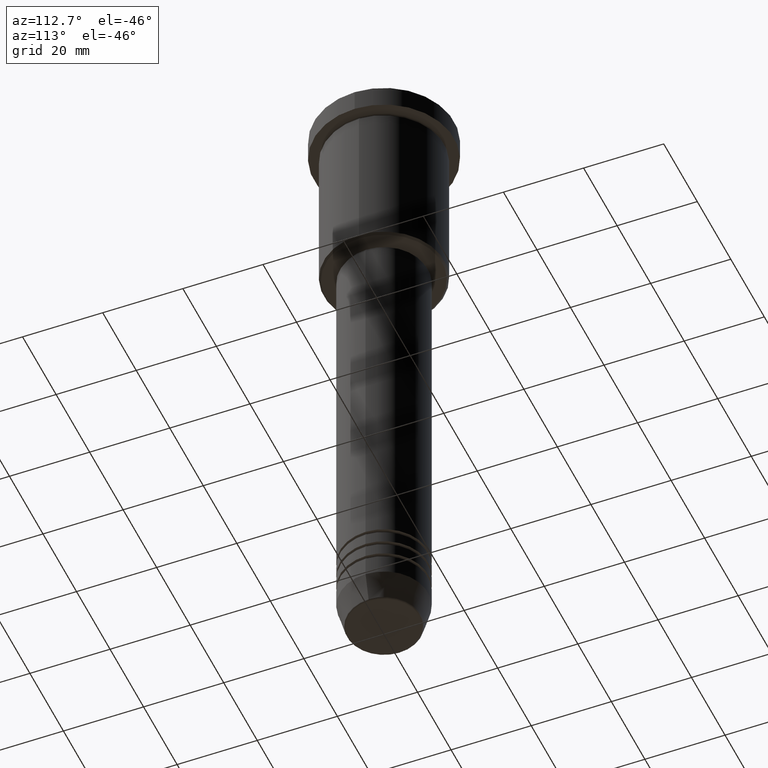
[diagram: clean part render]
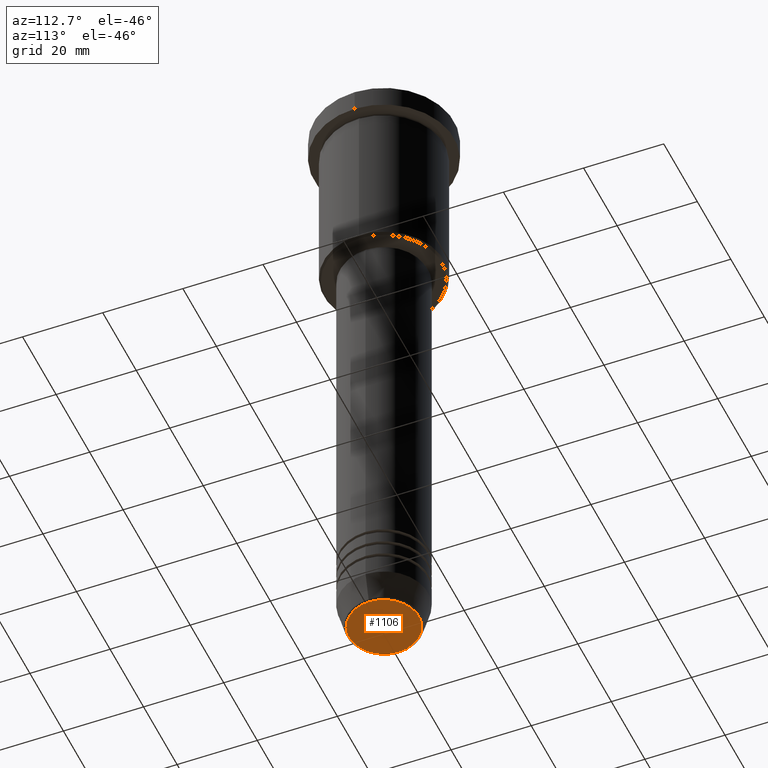
[diagram: same view with one face highlighted and labeled with its STEP entity id]
A machine part, auxiliary view. The second image highlights one B-rep face of the part: STEP entity #1106.
In plain terms, the highlighted planar face has unit normal (0, -0, 1).
Its self-contained STEP definition (entity closure, byte-faithful):
#14 = DIRECTION ( 'NONE',  ( 1.000000000000000000, 0.000000000000000000, 0.000000000000000000 ) ) ;
#18 = FACE_OUTER_BOUND ( 'NONE', #97, .T. ) ;
#97 = EDGE_LOOP ( 'NONE', ( #449, #1149 ) ) ;
#157 = CIRCLE ( 'NONE', #1078, 8.740692158992656502 ) ;
#192 = DIRECTION ( 'NONE',  ( 0.000000000000000000, -0.000000000000000000, 1.000000000000000000 ) ) ;
#215 = DIRECTION ( 'NONE',  ( 0.000000000000000000, 0.000000000000000000, -1.000000000000000000 ) ) ;
#282 = PLANE ( 'NONE',  #1003 ) ;
#299 = CARTESIAN_POINT ( 'NONE',  ( 0.000000000000000000, 0.000000000000000000, -161.0000000000000284 ) ) ;
#373 = EDGE_CURVE ( 'NONE', #775, #1055, #856, .T. ) ;
#422 = EDGE_CURVE ( 'NONE', #1055, #775, #157, .T. ) ;
#449 = ORIENTED_EDGE ( 'NONE', *, *, #373, .T. ) ;
#483 = DIRECTION ( 'NONE',  ( 1.000000000000000000, 0.000000000000000000, 0.000000000000000000 ) ) ;
#509 = CARTESIAN_POINT ( 'NONE',  ( 0.000000000000000000, 0.000000000000000000, -161.0000000000000284 ) ) ;
#700 = DIRECTION ( 'NONE',  ( 0.000000000000000000, 0.000000000000000000, -1.000000000000000000 ) ) ;
#774 = CARTESIAN_POINT ( 'NONE',  ( 8.740692158992656502, 0.000000000000000000, -161.0000000000000284 ) ) ;
#775 = VERTEX_POINT ( 'NONE', #774 ) ;
#792 = DIRECTION ( 'NONE',  ( 1.000000000000000000, 0.000000000000000000, 0.000000000000000000 ) ) ;
#856 = CIRCLE ( 'NONE', #929, 8.740692158992656502 ) ;
#929 = AXIS2_PLACEMENT_3D ( 'NONE', #299, #215, #483 ) ;
#1003 = AXIS2_PLACEMENT_3D ( 'NONE', #1010, #192, #14 ) ;
#1010 = CARTESIAN_POINT ( 'NONE',  ( 0.000000000000000000, 0.000000000000000000, -161.0000000000000284 ) ) ;
#1055 = VERTEX_POINT ( 'NONE', #1147 ) ;
#1078 = AXIS2_PLACEMENT_3D ( 'NONE', #509, #700, #792 ) ;
#1106 = ADVANCED_FACE ( 'NONE', ( #18 ), #282, .F. ) ;
#1147 = CARTESIAN_POINT ( 'NONE',  ( -8.740692158992656502, 1.099999016768739653E-15, -161.0000000000000284 ) ) ;
#1149 = ORIENTED_EDGE ( 'NONE', *, *, #422, .T. ) ;